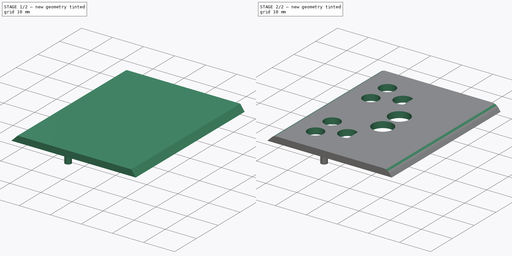
[diagram: build sequence overview — one tinted view per stage of 2, left to right]
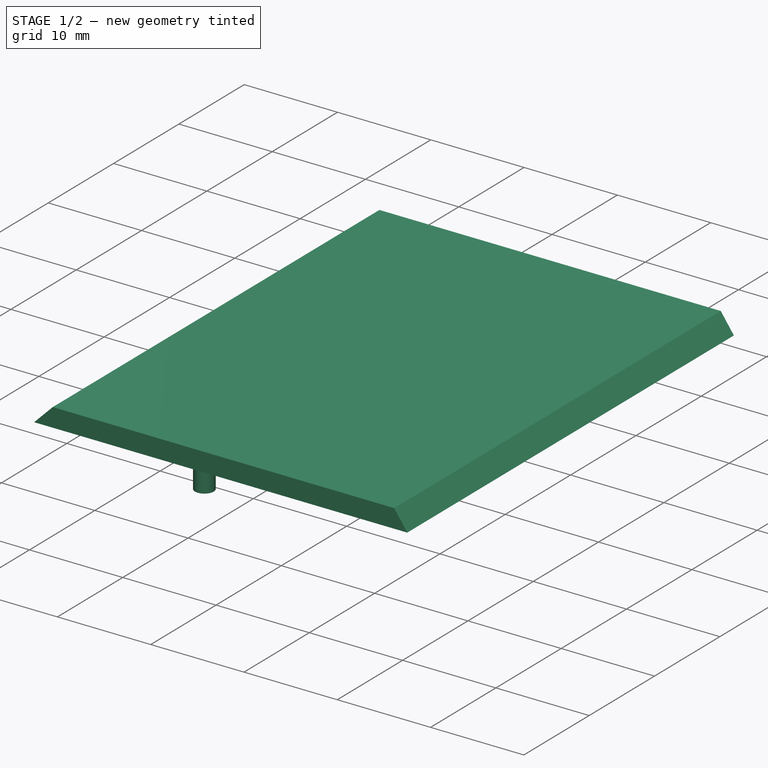
[diagram: stage 1 of 2 — iso view after this stage's code; geometry added in this stage tinted green]
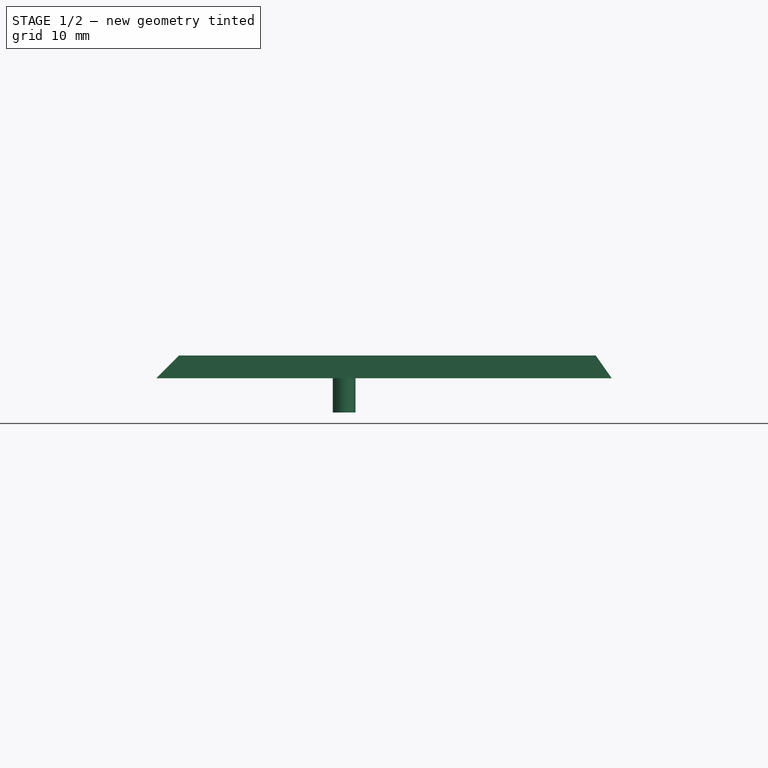
[diagram: stage 1 of 2 — front view after this stage's code; geometry added in this stage tinted green]
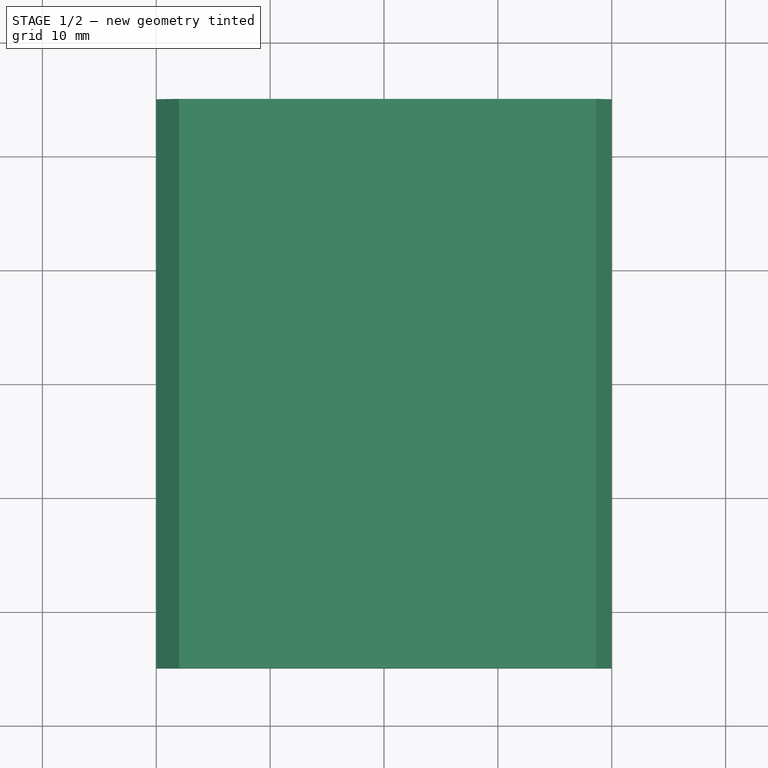
[diagram: stage 1 of 2 — top view after this stage's code; geometry added in this stage tinted green]
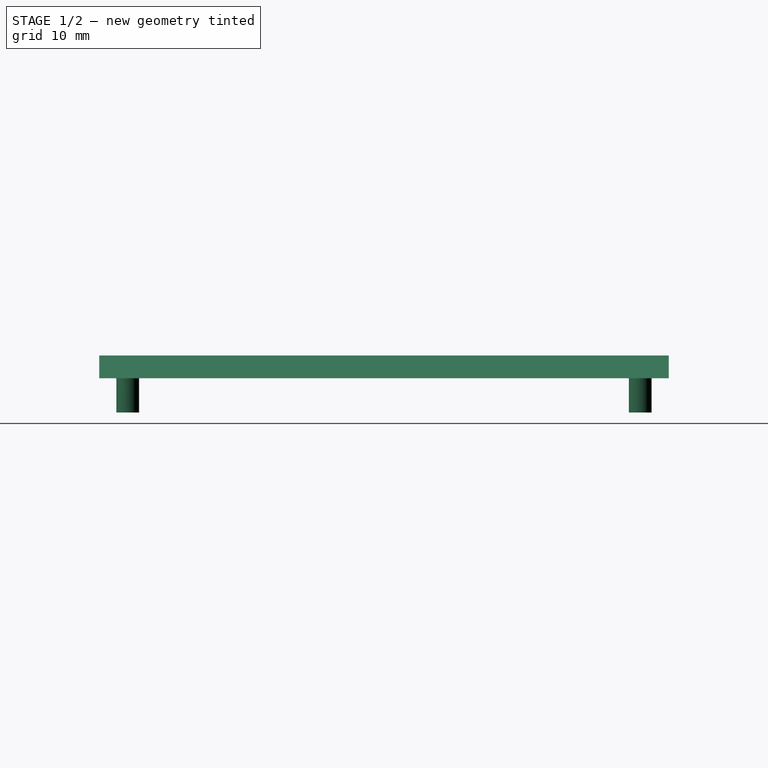
[diagram: stage 1 of 2 — right view after this stage's code; geometry added in this stage tinted green]
FCSTD DOCUMENT  (FreeCAD 0.21R30029 (Git))
Label: LightTop
License: All rights reserved
LicenseURL: http://en.wikipedia.org/wiki/All_rights_reserved
objects: Sketcher::SketchObject×3, PartDesign::Pad×2, PartDesign::Pocket×1, PartDesign::Fillet×1, PartDesign::Body×1
note: 12 computed .brp shape members not serialized (recipe doc carries the construction recipe); baked Part::Feature solids carry a one-line shape summary decoded from their .brp

FEATURE [Sketcher::SketchObject] Sketch
  FullyConstrained = true
  MapMode = 5
  Placement = pos=(0,0,0) rot=(1,0,0;1.5708rad)
  Support = -> [XZ_Plane]
  sketch-geometry (6):
    g0: LineSegment StartX=0 StartY=0 StartZ=0 EndX=2 EndY=2 EndZ=0
    g1: LineSegment StartX=2 StartY=2 StartZ=0 EndX=38.5996 EndY=2 EndZ=0
    g2: LineSegment StartX=38.5996 StartY=2 StartZ=0 EndX=40 EndY=0 EndZ=0
    g3: LineSegment StartX=0 StartY=0 StartZ=0 EndX=40 EndY=0 EndZ=0
    g4: LineSegment StartX=38.5996 StartY=2 StartZ=0 EndX=40 EndY=2 EndZ=0
    g5: LineSegment StartX=40 StartY=2 StartZ=0 EndX=40 EndY=0 EndZ=0
  constraints (16):
    c: Coincident(g0,g-1)
    c: Coincident(g1,g0)
    c: Horizontal(g1)
    c: Coincident(g2,g1)
    c: Coincident(g3,g2)
    c: Horizontal(g3)
    c: DistanceX(g0,g2) = 40
    c: DistanceY(g0,g0) = 2
    c: Coincident(g3,g0)
    c: Angle(g0,g-2) = 0.785398
    c: Coincident(g4,g1)
    c: Horizontal(g4)
    c: Coincident(g5,g4)
    c: Coincident(g5,g2)
    c: Vertical(g5)
    c: Angle(g5,g2) = 0.610865
FEATURE [PartDesign::Pad] Pad
  Direction = (0,-1,-2e-16)
  Length = 50
  Length2 = 10
  Midplane = true
  Placement = pos=(0,0,0) rot=(1,0,0;1.5708rad)
  Profile = -> Sketch
  ReferenceAxis = -> Sketch [N_Axis]
  Type = 0
FEATURE [Sketcher::SketchObject] Sketch001
  FullyConstrained = true
  MapMode = 5
  Placement = pos=(0,0,0) rot=(1,0,0;3.14159rad)
  Support = -> [Pad]
  sketch-geometry (5):
    g0: Circle CenterX=16.5 CenterY=22.5 CenterZ=0 NormalX=0 NormalY=0 NormalZ=1 AngleXU=0 Radius=1
    g1: Circle CenterX=16.5 CenterY=-22.5 CenterZ=0 NormalX=0 NormalY=0 NormalZ=1 AngleXU=0 Radius=1
    g2: LineSegment StartX=0 StartY=0 StartZ=0 EndX=16.5 EndY=22.5 EndZ=0
    g3: LineSegment StartX=0 StartY=0 StartZ=0 EndX=16.5 EndY=-22.5 EndZ=0
    g4: LineSegment StartX=16.5 StartY=22.5 StartZ=0 EndX=16.5 EndY=-22.5 EndZ=0
  constraints (12):
    c: Coincident(g2,g-1)
    c: Coincident(g2,g0)
    c: Coincident(g3,g2)
    c: Coincident(g3,g1)
    c: DistanceX(g2,g2) = 16.5
    c: Diameter(g0) = 2
    c: Equal(g1,g0)
    c: Equal(g3,g2)
    c: DistanceY(g1,g0) = 45
    c: Coincident(g4,g0)
    c: Coincident(g4,g1)
    c: Vertical(g4)
FEATURE [PartDesign::Pad] Pad001
  BaseFeature = -> Pad
  Direction = (0,2e-16,-1)
  Length = 3
  Length2 = 10
  Placement = pos=(0,0,0) rot=(1,0,0;1.5708rad)
  Profile = -> Sketch001
  ReferenceAxis = -> Sketch001 [N_Axis]
  Type = 0
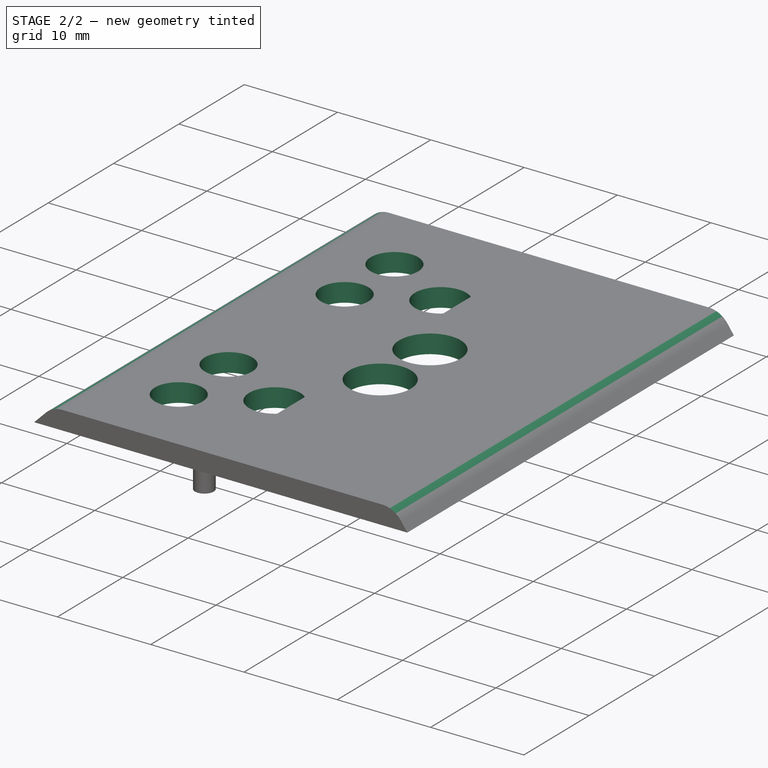
[diagram: stage 2 of 2 — iso view after this stage's code; geometry added in this stage tinted green]
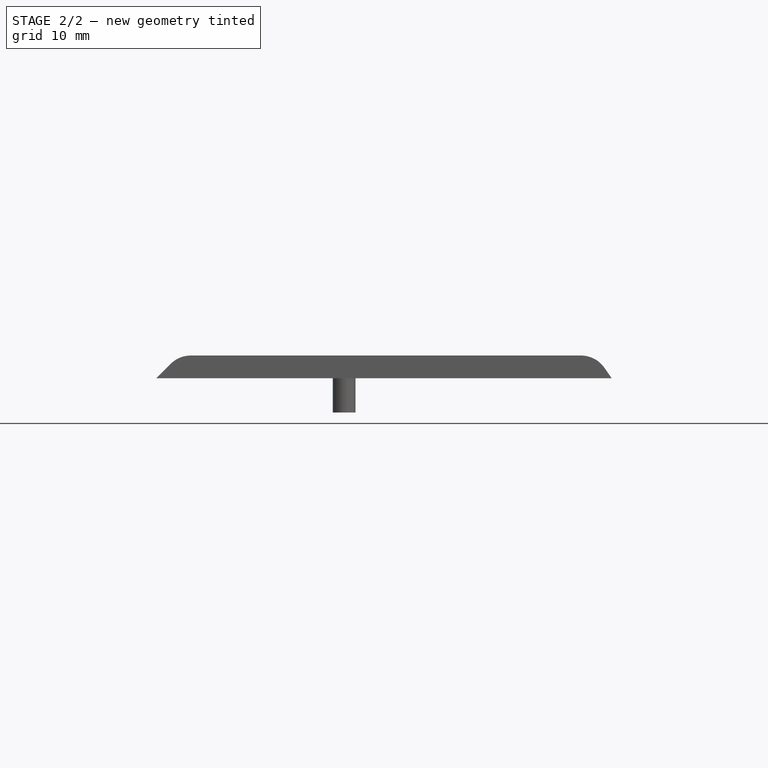
[diagram: stage 2 of 2 — front view after this stage's code; geometry added in this stage tinted green]
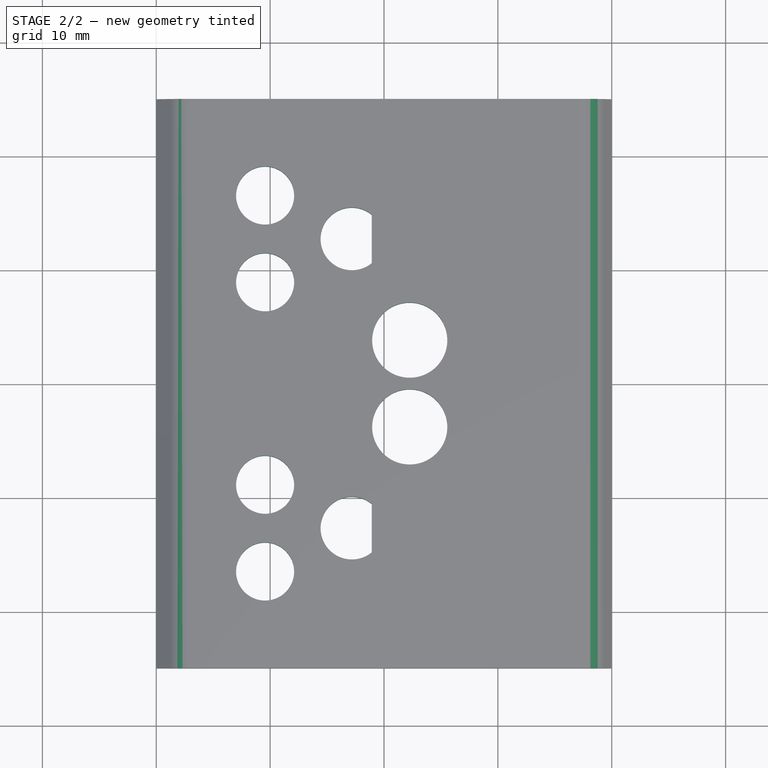
[diagram: stage 2 of 2 — top view after this stage's code; geometry added in this stage tinted green]
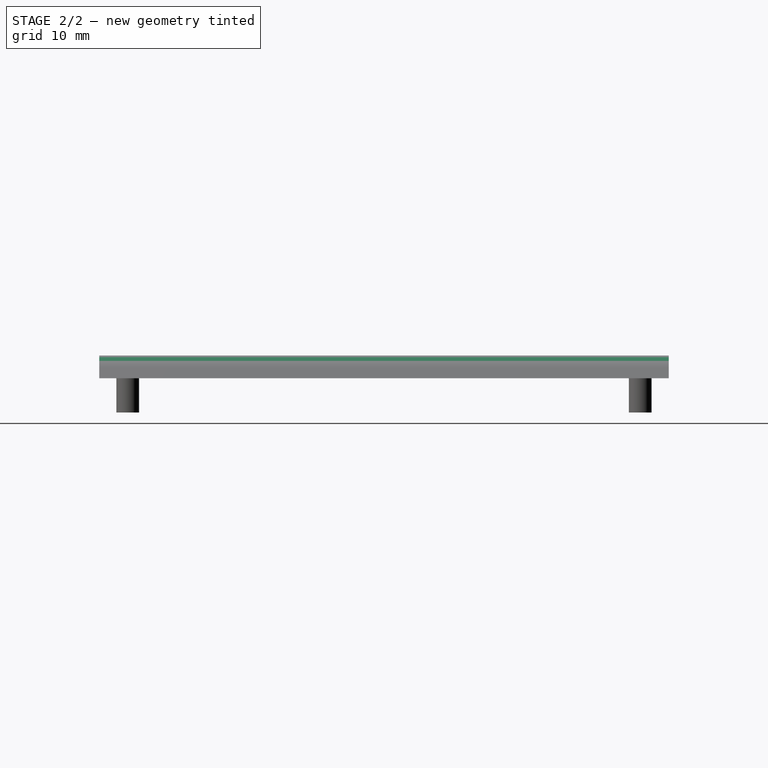
[diagram: stage 2 of 2 — right view after this stage's code; geometry added in this stage tinted green]
FEATURE [Sketcher::SketchObject] Sketch002
  FullyConstrained = true
  MapMode = 5
  Placement = pos=(0,0,0) rot=(1,0,0;3.14159rad)
  Support = -> [Pad001]
  sketch-geometry (23):
    g0: Circle CenterX=9.56 CenterY=16.51 CenterZ=0 NormalX=0 NormalY=0 NormalZ=1 AngleXU=0 Radius=2.55
    g1: Circle CenterX=9.56 CenterY=8.89 CenterZ=0 NormalX=0 NormalY=0 NormalZ=1 AngleXU=0 Radius=2.55
    g2: Circle CenterX=9.56 CenterY=-8.89 CenterZ=0 NormalX=0 NormalY=0 NormalZ=1 AngleXU=0 Radius=2.55
    g3: Circle CenterX=9.56 CenterY=-16.51 CenterZ=0 NormalX=0 NormalY=0 NormalZ=1 AngleXU=0 Radius=2.55
    g4: LineSegment StartX=9.56 StartY=16.51 StartZ=0 EndX=9.56 EndY=8.89 EndZ=0
    g5: LineSegment StartX=9.56 StartY=-8.89 StartZ=0 EndX=9.56 EndY=-16.51 EndZ=0
    g6: LineSegment StartX=9.56 StartY=-8.89 StartZ=0 EndX=9.56 EndY=8.89 EndZ=0
    g7: LineSegment StartX=0 StartY=0 StartZ=0 EndX=9.56 EndY=8.89 EndZ=0
    g8: LineSegment StartX=0 StartY=0 StartZ=0 EndX=9.56 EndY=-8.89 EndZ=0
    g9: LineSegment StartX=18.9255 StartY=14.825 StartZ=0 EndX=18.9255 EndY=10.575 EndZ=0
    g10: LineSegment StartX=18.9255 StartY=-10.575 StartZ=0 EndX=18.9255 EndY=-14.825 EndZ=0
    g11: Circle CenterX=22.26 CenterY=3.81 CenterZ=0 NormalX=0 NormalY=0 NormalZ=1 AngleXU=0 Radius=3.3
    g12: Circle CenterX=22.26 CenterY=-3.81 CenterZ=0 NormalX=0 NormalY=0 NormalZ=1 AngleXU=0 Radius=3.3
    g13: ArcOfCircle CenterX=17.18 CenterY=12.7 CenterZ=0 NormalX=0 NormalY=0 NormalZ=1 AngleXU=0 Radius=2.75 StartAngle=0.883127 EndAngle=5.40006
    g14: ArcOfCircle CenterX=17.18 CenterY=-12.7 CenterZ=0 NormalX=0 NormalY=0 NormalZ=1 AngleXU=0 Radius=2.75 StartAngle=0.883127 EndAngle=5.40006
    g15: LineSegment StartX=22.26 StartY=3.81 StartZ=0 EndX=22.26 EndY=-3.81 EndZ=0
    g16: LineSegment StartX=17.18 StartY=12.7 StartZ=0 EndX=17.18 EndY=0 EndZ=0
    g17: LineSegment StartX=17.18 StartY=4e-16 StartZ=0 EndX=17.18 EndY=-12.7 EndZ=0
    g18: LineSegment StartX=17.18 StartY=4e-16 StartZ=0 EndX=22.26 EndY=3.81 EndZ=0
    g19: LineSegment StartX=22.26 StartY=-3.81 StartZ=0 EndX=17.18 EndY=4e-16 EndZ=0
    g20: LineSegment StartX=9.56 StartY=-16.51 StartZ=0 EndX=16.545 EndY=-16.51 EndZ=0
    g21: LineSegment StartX=16.545 StartY=-16.51 StartZ=0 EndX=16.545 EndY=16.51 EndZ=0
    g22: LineSegment StartX=16.545 StartY=16.51 StartZ=0 EndX=9.56 EndY=16.51 EndZ=0
  constraints (61):
    c: Diameter(g0) = 5.1
    c: Equal(g3,g2)
    c: Equal(g2,g1)
    c: Coincident(g4,g0)
    c: Coincident(g4,g1)
    c: Coincident(g5,g2)
    c: Coincident(g5,g3)
    c: Coincident(g6,g2)
    c: Coincident(g6,g1)
    c: Vertical(g5)
    c: Vertical(g6)
    c: Vertical(g4)
    c: Equal(g4,g5)
    c: Equal(g1,g0)
    c: Distance(g6) = 17.78
    c: Distance(g5) = 7.62
    c: Coincident(g7,g-1)
    c: Coincident(g7,g1)
    c: Coincident(g8,g7)
    c: Coincident(g8,g2)
    c: Equal(g8,g7)
    c: DistanceX(g7,g7) = 9.56
    c: Equal(g12,g11)
    c: Vertical(g10)
    c: Vertical(g9)
    c: Coincident(g13,g9)
    c: Coincident(g13,g9)
    c: Coincident(g14,g10)
    c: Coincident(g14,g10)
    c: Equal(g14,g13)
    c: Equal(g9,g10)
    c: Distance(g9) = 4.25
    c: Radius(g13) = 2.75
    c: Diameter(g11) = 6.6
    c: Coincident(g15,g11)
    c: Coincident(g15,g12)
    c: Vertical(g15)
    c: Distance(g15) = 7.62
    c: Coincident(g16,g13)
    c: Vertical(g16)
    c: Coincident(g17,g16)
    c: Coincident(g17,g14)
    c: Vertical(g17)
    c: Equal(g17,g16)
    c: Distance(g17) = 12.7
    c: PointOnObject(g16,g-1)
    c: Coincident(g18,g16)
    c: Coincident(g18,g11)
    c: Coincident(g19,g12)
    c: Coincident(g19,g18)
    c: Equal(g18,g19)
    c: Coincident(g20,g3)
    c: Horizontal(g20)
    c: Coincident(g21,g20)
    c: Vertical(g21)
    c: Coincident(g22,g21)
    c: Coincident(g22,g0)
    c: Horizontal(g22)
    c: DistanceX(g21,g13) = 0.635
    c: Distance(g20) = 6.985
    c: DistanceX(g20,g12) = 5.715
FEATURE [PartDesign::Pocket] Pocket
  BaseFeature = -> Pad001
  Direction = (0,0,1)
  Length = 5
  Length2 = 5
  Placement = pos=(0,0,0) rot=(1,0,0;1.5708rad)
  Profile = -> Sketch002
  ReferenceAxis = -> Sketch002 [N_Axis]
  Type = 1
FEATURE [PartDesign::Fillet] Fillet
  Base = -> Pocket [Edge22,Edge2]
  BaseFeature = -> Pocket
  Placement = pos=(0,0,0) rot=(1,0,0;1.5708rad)
  Radius = 2.5
  SupportTransform = false
  UseAllEdges = false
FEATURE [PartDesign::Body] Body
  Group = -> [Sketch,Pad,Sketch001,Pad001,Sketch002,Pocket,Fillet]
  Origin = -> Origin
  Tip = -> Fillet
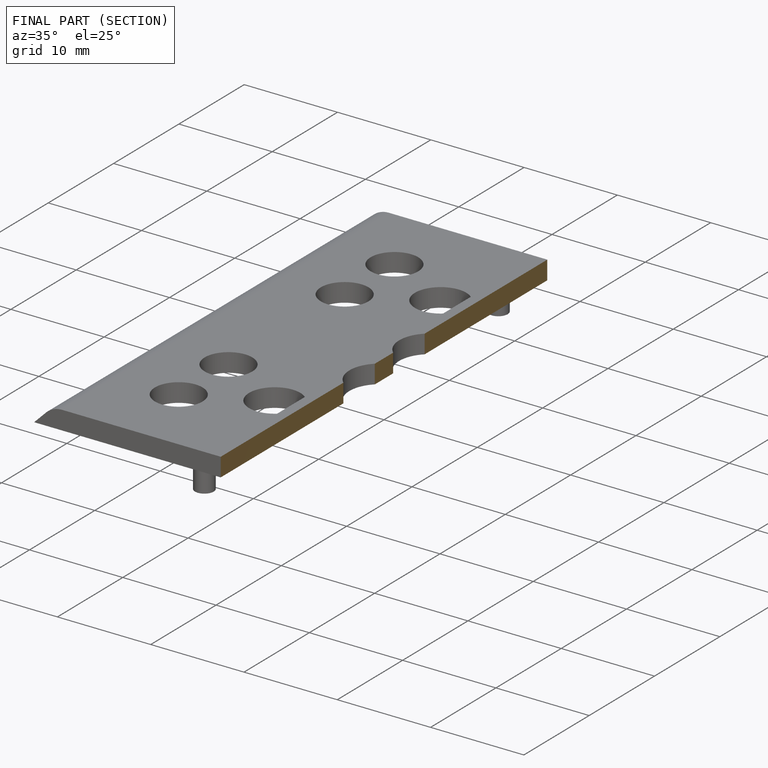
[diagram: finished part — half-section view (interior)]
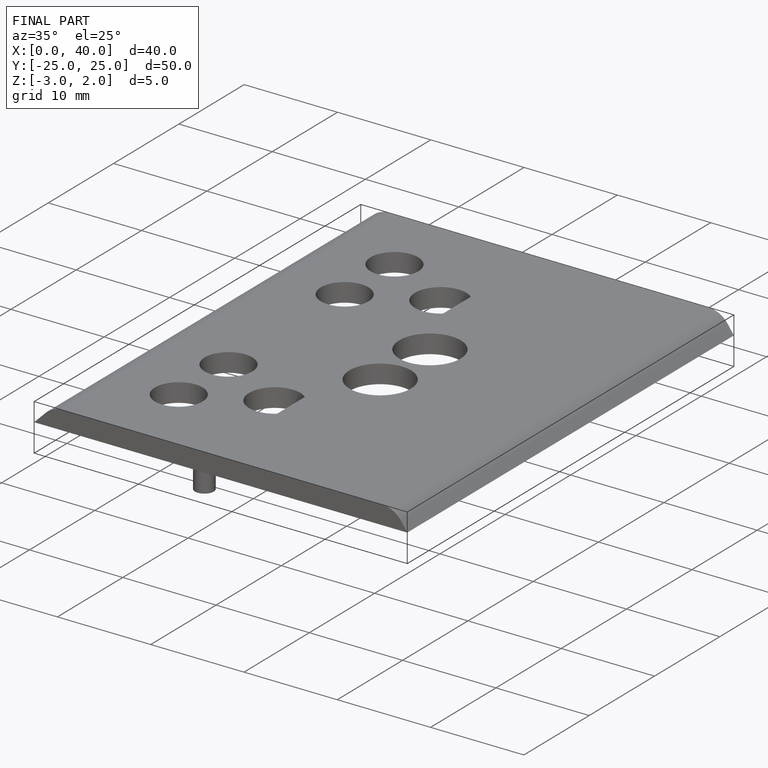
[diagram: finished part — iso view with bounding-box wireframe]
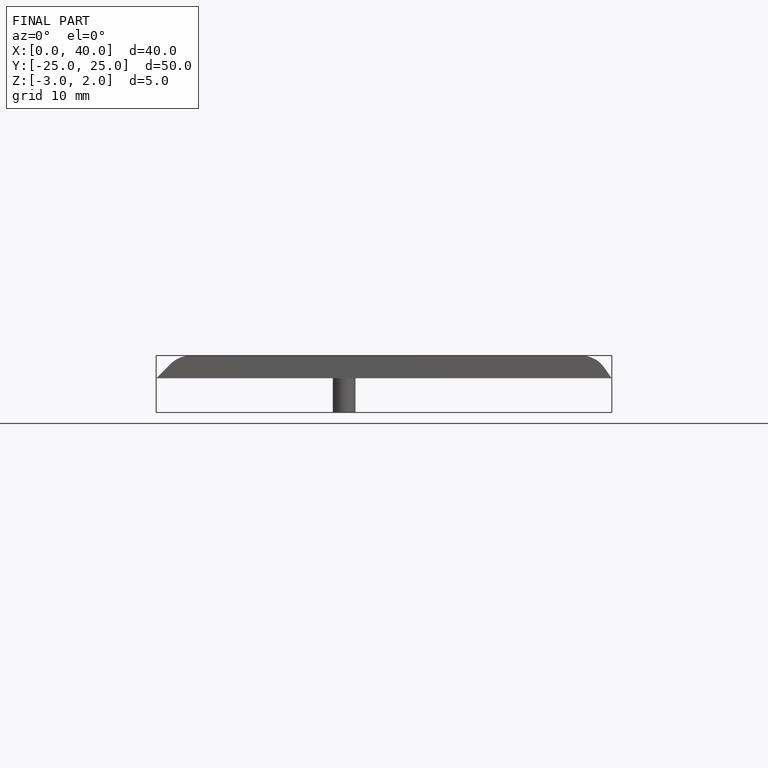
[diagram: finished part — front view with bounding-box wireframe]
